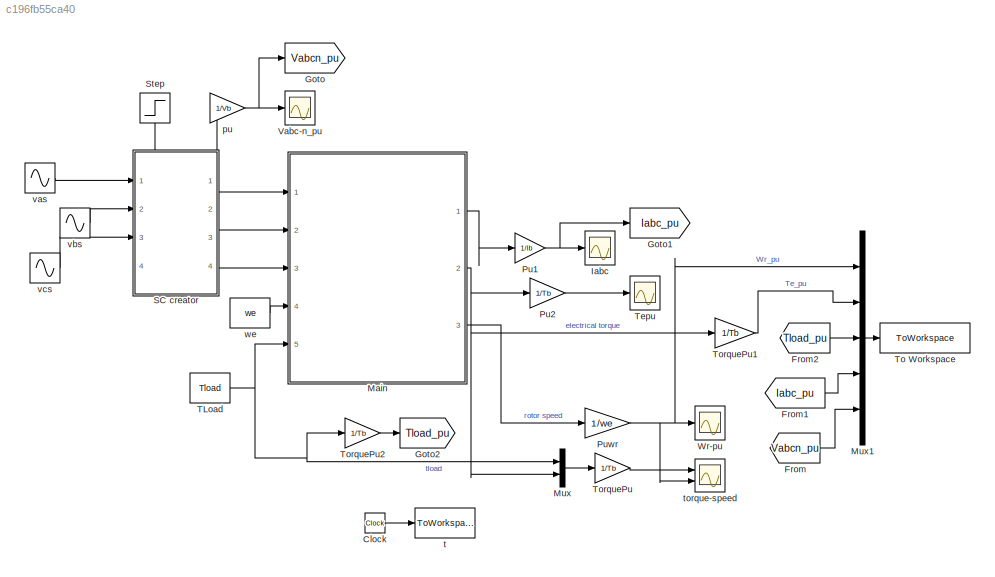
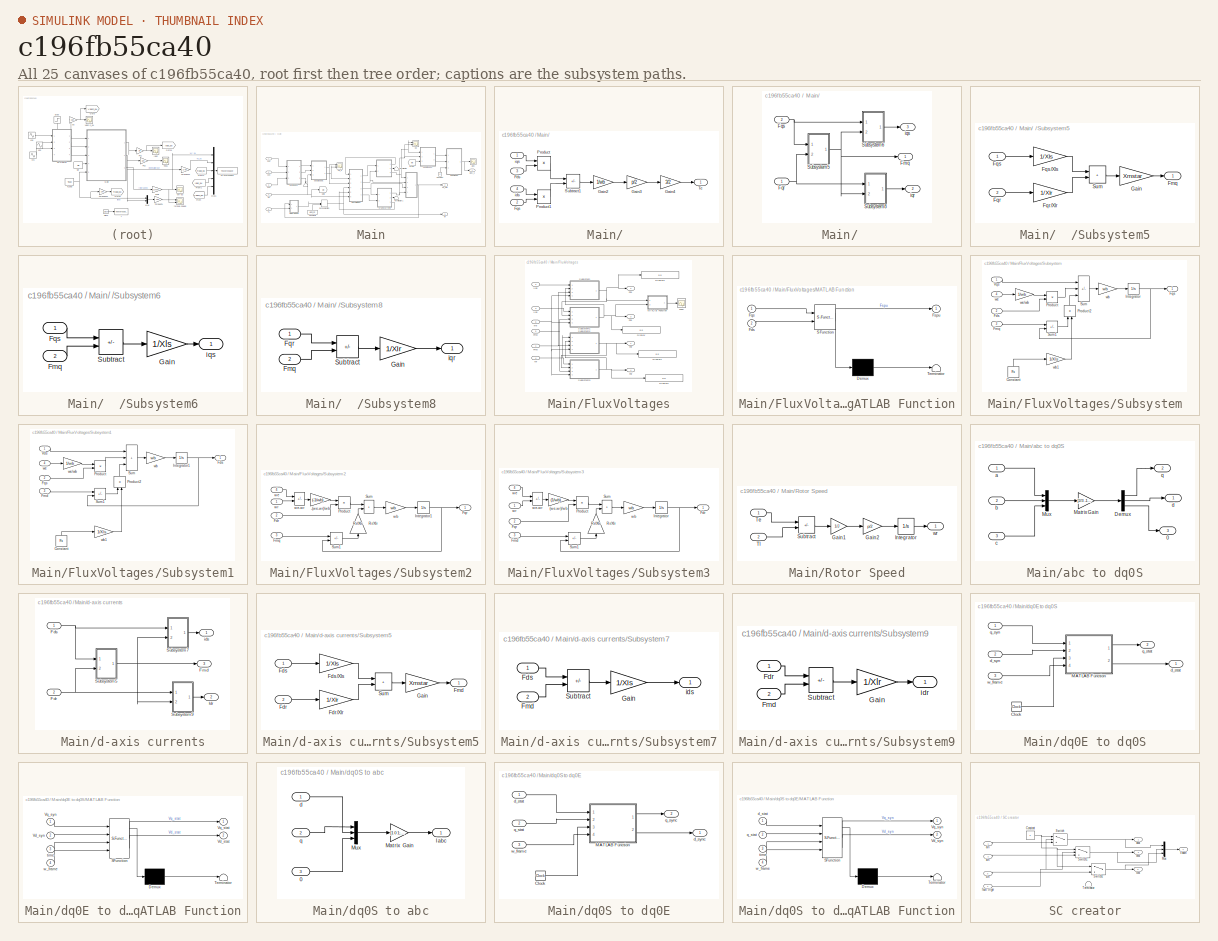
[diagram: thumbnail index - all 25 canvases of the model, root first then tree order]
MODEL slx_c196fb55ca40
KIND model
CONFIG AbsTol = auto
CONFIG EnableMultiTasking = on
CONFIG FixedStep = t_step
CONFIG MaxStep = auto
CONFIG MinStep = auto
CONFIG RelTol = auto
CONFIG SampleTimeConstraint = Unconstrained
CONFIG SolverName = FixedStepAuto
CONFIG StartTime = 0.0
CONFIG StopTime = t_stop*5
BLOCK [Clock] Clock 
  Decimation = 1
BLOCK [From] From
  GotoTag = Vabcn_pu
BLOCK [From] From1
  GotoTag = Iabc_pu
BLOCK [From] From2
  GotoTag = Tload_pu
BLOCK [Goto] Goto
  GotoTag = Vabcn_pu
BLOCK [Goto] Goto1
  GotoTag = Iabc_pu
BLOCK [Goto] Goto2
  GotoTag = Tload_pu
BLOCK [Scope] Iabc
  Floating = off
  NumInputPorts = 1
  Ports = [1]
  ScopeSpecificationString = Simulink.scopes.TimeScopeBlockCfg('CurrentConfiguration', extmgr.ConfigurationSet(extmgr.Configuration('Core','General UI',true,'FigureColor',[0.941176470588235 0.941176470588235 0.941176470588235]),extmgr.Configuration('Core','Source UI',true),extmgr.Configuration('Sources','WiredSimulink',true,'DataLoggingVariableName','ScopeData3'),extmgr.Configuration('Visuals','Time Domain',true,'SerializedDi...<+2250ch>
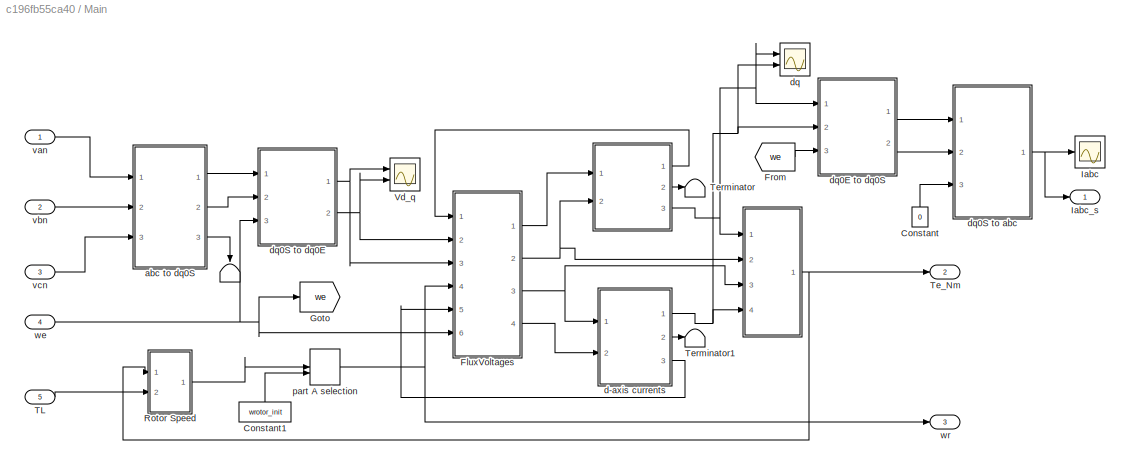
BLOCK [SubSystem] Main
  Ports = [5, 3]
  RequestExecContextInheritance = off
BLOCK [SubSystem] Main/ 
  Ports = [4, 1]
  RequestExecContextInheritance = off
BLOCK [SubSystem] Main/  
  Ports = [2, 3]
  RequestExecContextInheritance = off
BLOCK [Terminator] Main/            
  NameLocation = left
BLOCK [Outport] Main/  /Fmq
  VectorParamsAs1DForOutWhenUnconnected = off
BLOCK [Inport] Main/  /Fqr
BLOCK [Inport] Main/  /Fqs
  Port = 2
BLOCK [SubSystem] Main/  /Subsystem5
  Ports = [2, 1]
  RequestExecContextInheritance = off
BLOCK [Outport] Main/  /Subsystem5/Fmq
  VectorParamsAs1DForOutWhenUnconnected = off
BLOCK [Inport] Main/  /Subsystem5/Fqr
  Port = 2
BLOCK [Gain] Main/  /Subsystem5/Fqr//Xlr
  Gain = 1/Xlr
BLOCK [Inport] Main/  /Subsystem5/Fqs
BLOCK [Gain] Main/  /Subsystem5/Fqs//Xls
  Gain = 1/Xls
BLOCK [Gain] Main/  /Subsystem5/Gain
  Gain = Xmstar
BLOCK [Sum] Main/  /Subsystem5/Sum
  IconShape = rectangular
  Ports = [2, 1]
BLOCK [SubSystem] Main/  /Subsystem6
  Ports = [2, 1]
  RequestExecContextInheritance = off
BLOCK [Inport] Main/  /Subsystem6/Fmq
  Port = 2
BLOCK [Inport] Main/  /Subsystem6/Fqs
BLOCK [Gain] Main/  /Subsystem6/Gain
  Gain = 1/Xls
BLOCK [Sum] Main/  /Subsystem6/Subtract
  IconShape = rectangular
  Inputs = +-
  Ports = [2, 1]
BLOCK [Outport] Main/  /Subsystem6/iqs
  VectorParamsAs1DForOutWhenUnconnected = off
BLOCK [SubSystem] Main/  /Subsystem8
  Ports = [2, 1]
  RequestExecContextInheritance = off
BLOCK [Inport] Main/  /Subsystem8/Fmq
  Port = 2
BLOCK [Inport] Main/  /Subsystem8/Fqr
BLOCK [Gain] Main/  /Subsystem8/Gain
  Gain = 1/Xlr
BLOCK [Sum] Main/  /Subsystem8/Subtract
  IconShape = rectangular
  Inputs = +-
  Ports = [2, 1]
BLOCK [Outport] Main/  /Subsystem8/iqr
  VectorParamsAs1DForOutWhenUnconnected = off
BLOCK [Outport] Main/  /iqr
  Port = 2
  VectorParamsAs1DForOutWhenUnconnected = off
BLOCK [Outport] Main/  /iqs
  Port = 3
  VectorParamsAs1DForOutWhenUnconnected = off
BLOCK [Inport] Main/ /Fds
  Port = 3
BLOCK [Inport] Main/ /Fqs
  Port = 2
BLOCK [Gain] Main/ /Gain2
  Gain = 1/wb
BLOCK [Gain] Main/ /Gain3
  Gain = p/2
BLOCK [Gain] Main/ /Gain4
  Gain = 3/2
BLOCK [Product] Main/ /Product
  Ports = [2, 1]
  RndMeth = Zero
BLOCK [Product] Main/ /Product1
  Ports = [2, 1]
  RndMeth = Zero
BLOCK [Sum] Main/ /Subtract1
  IconShape = rectangular
  Inputs = +-
  Ports = [2, 1]
BLOCK [Outport] Main/ /Te
  VectorParamsAs1DForOutWhenUnconnected = off
BLOCK [Inport] Main/ /ids
  Port = 4
BLOCK [Inport] Main/ /iqs
BLOCK [Constant] Main/Constant
  NameLocation = right
  Value = 0
BLOCK [Constant] Main/Constant1
  NameLocation = right
  Value = wrotor_init
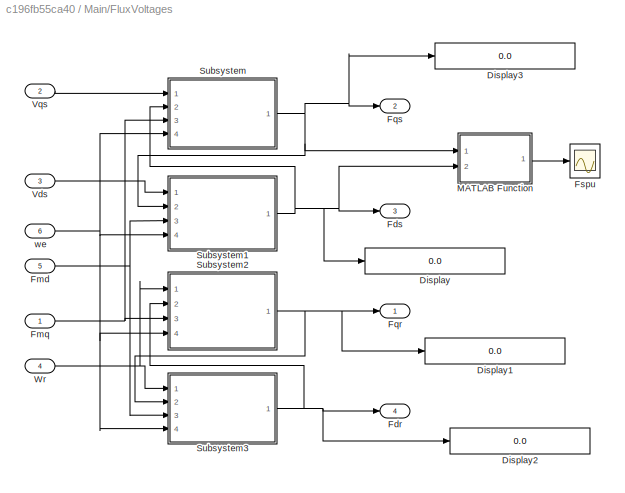
BLOCK [SubSystem] Main/FluxVoltages
  Ports = [6, 4]
  RequestExecContextInheritance = off
BLOCK [Display] Main/FluxVoltages/Display
  Decimation = 6
  Format = long
  Ports = [1]
BLOCK [Display] Main/FluxVoltages/Display1
  Decimation = 6
  Format = long
  Ports = [1]
BLOCK [Display] Main/FluxVoltages/Display2
  Decimation = 6
  Format = long
  Ports = [1]
BLOCK [Display] Main/FluxVoltages/Display3
  Decimation = 6
  Format = long
  Ports = [1]
BLOCK [Outport] Main/FluxVoltages/Fdr
  Port = 4
  VectorParamsAs1DForOutWhenUnconnected = off
BLOCK [Outport] Main/FluxVoltages/Fds
  Port = 3
  VectorParamsAs1DForOutWhenUnconnected = off
BLOCK [Inport] Main/FluxVoltages/Fmd
  Port = 5
BLOCK [Inport] Main/FluxVoltages/Fmq
BLOCK [Outport] Main/FluxVoltages/Fqr
  VectorParamsAs1DForOutWhenUnconnected = off
BLOCK [Outport] Main/FluxVoltages/Fqs
  Port = 2
  VectorParamsAs1DForOutWhenUnconnected = off
BLOCK [Scope] Main/FluxVoltages/Fspu
  Floating = off
  NumInputPorts = 1
  Ports = [1]
  ScopeSpecificationString = Simulink.scopes.TimeScopeBlockCfg('CurrentConfiguration', extmgr.ConfigurationSet(extmgr.Configuration('Core','General UI',true,'FigureColor',[0.941176470588235 0.941176470588235 0.941176470588235]),extmgr.Configuration('Core','Source UI',true),extmgr.Configuration('Sources','WiredSimulink',true,'DataLoggingVariableName','ScopeData4'),extmgr.Configuration('Visuals','Time Domain',true,'SerializedDi...<+2041ch>
BLOCK [SubSystem] Main/FluxVoltages/MATLAB Function
  ErrorFcn = Stateflow.Translate.translate
  PermitHierarchicalResolution = ExplicitOnly
  Ports = [2, 1]
  RequestExecContextInheritance = off
  SFBlockType = MATLAB Function
  TreatAsAtomicUnit = on
BLOCK [Demux] Main/FluxVoltages/MATLAB Function/ Demux 
  Outputs = 1
  Ports = [1, 1]
BLOCK [S-Function] Main/FluxVoltages/MATLAB Function/ SFunction 
  EnableBusSupport = on
  FunctionName = sf_sfun
  PortCounts = [2 2]
  Ports = [2, 2]
  SFcnIsStateOwnerBlock = off
  SFunctionDeploymentMode = off
  Tag = Stateflow S-Function 4
BLOCK [Terminator] Main/FluxVoltages/MATLAB Function/ Terminator 
BLOCK [Inport] Main/FluxVoltages/MATLAB Function/Fds
  Port = 2
BLOCK [Inport] Main/FluxVoltages/MATLAB Function/Fqs
BLOCK [Outport] Main/FluxVoltages/MATLAB Function/Fspu
  VectorParamsAs1DForOutWhenUnconnected = off
BLOCK [SubSystem] Main/FluxVoltages/Subsystem
  Ports = [4, 1]
  RequestExecContextInheritance = off
BLOCK [Constant] Main/FluxVoltages/Subsystem/Constant
  NameLocation = right
  Value = Rs
BLOCK [Inport] Main/FluxVoltages/Subsystem/Fds
  Port = 2
BLOCK [Inport] Main/FluxVoltages/Subsystem/Fmq
  Port = 3
BLOCK [Outport] Main/FluxVoltages/Subsystem/Fqs
  VectorParamsAs1DForOutWhenUnconnected = off
BLOCK [Integrator] Main/FluxVoltages/Subsystem/Integrator
  InitialCondition = fqs0
  Ports = [1, 1]
BLOCK [Product] Main/FluxVoltages/Subsystem/Product
  Ports = [2, 1]
  RndMeth = Zero
BLOCK [Product] Main/FluxVoltages/Subsystem/Product2
  NameLocation = right
  Ports = [2, 1]
  RndMeth = Zero
BLOCK [Sum] Main/FluxVoltages/Subsystem/Sum
  IconShape = rectangular
  Inputs = +-+
  NameLocation = top
  Ports = [3, 1]
BLOCK [Sum] Main/FluxVoltages/Subsystem/Sum1
  IconShape = rectangular
  Inputs = +-
  Ports = [2, 1]
BLOCK [Inport] Main/FluxVoltages/Subsystem/Vqs
BLOCK [Gain] Main/FluxVoltages/Subsystem/wb
  Gain = wb
BLOCK [Gain] Main/FluxVoltages/Subsystem/wb1
  Gain = 1/Xls
BLOCK [Inport] Main/FluxVoltages/Subsystem/we
  Port = 4
BLOCK [Gain] Main/FluxVoltages/Subsystem/we//wb
  Gain = 1/wb
BLOCK [SubSystem] Main/FluxVoltages/Subsystem1
  Ports = [4, 1]
  RequestExecContextInheritance = off
BLOCK [Constant] Main/FluxVoltages/Subsystem1/Constant
  NameLocation = right
  Value = Rs
BLOCK [Outport] Main/FluxVoltages/Subsystem1/Fds
  VectorParamsAs1DForOutWhenUnconnected = off
BLOCK [Inport] Main/FluxVoltages/Subsystem1/Fmd
  Port = 3
BLOCK [Inport] Main/FluxVoltages/Subsystem1/Fqs
  Port = 2
BLOCK [Integrator] Main/FluxVoltages/Subsystem1/Integrator1
  InitialCondition = fds0
  Ports = [1, 1]
BLOCK [Product] Main/FluxVoltages/Subsystem1/Product
  Ports = [2, 1]
  RndMeth = Zero
BLOCK [Product] Main/FluxVoltages/Subsystem1/Product2
  NameLocation = right
  Ports = [2, 1]
  RndMeth = Zero
BLOCK [Sum] Main/FluxVoltages/Subsystem1/Sum
  IconShape = rectangular
  Inputs = +++
  NameLocation = top
  Ports = [3, 1]
BLOCK [Sum] Main/FluxVoltages/Subsystem1/Sum1
  IconShape = rectangular
  Inputs = +-
  Ports = [2, 1]
BLOCK [Inport] Main/FluxVoltages/Subsystem1/Vds
BLOCK [Gain] Main/FluxVoltages/Subsystem1/wb
  Gain = wb
BLOCK [Gain] Main/FluxVoltages/Subsystem1/wb1
  Gain = 1/Xls
BLOCK [Inport] Main/FluxVoltages/Subsystem1/we
  Port = 4
BLOCK [Gain] Main/FluxVoltages/Subsystem1/we//wb
  Gain = 1/wb
BLOCK [SubSystem] Main/FluxVoltages/Subsystem2
  Ports = [4, 1]
  RequestExecContextInheritance = off
BLOCK [Gain] Main/FluxVoltages/Subsystem2/-(we-wr)//wb
  Gain = (-1/wb)
BLOCK [Inport] Main/FluxVoltages/Subsystem2/Fdr
  Port = 2
BLOCK [Inport] Main/FluxVoltages/Subsystem2/Fmq
  Port = 3
BLOCK [Outport] Main/FluxVoltages/Subsystem2/Fqr
  VectorParamsAs1DForOutWhenUnconnected = off
BLOCK [Integrator] Main/FluxVoltages/Subsystem2/Integrator1
  InitialCondition = fqr0
  Ports = [1, 1]
BLOCK [Product] Main/FluxVoltages/Subsystem2/Product
  Ports = [2, 1]
  RndMeth = Zero
BLOCK [Gain] Main/FluxVoltages/Subsystem2/Rr//Xlr
  Gain = Rr/Xlr
  NameLocation = right
BLOCK [Sum] Main/FluxVoltages/Subsystem2/Sum
  IconShape = rectangular
  NameLocation = top
  Ports = [2, 1]
BLOCK [Sum] Main/FluxVoltages/Subsystem2/Sum1
  IconShape = rectangular
  Inputs = +-
  Ports = [2, 1]
BLOCK [Gain] Main/FluxVoltages/Subsystem2/wb
  Gain = wb
BLOCK [Inport] Main/FluxVoltages/Subsystem2/we
  Port = 4
BLOCK [Sum] Main/FluxVoltages/Subsystem2/we-wr
  IconShape = rectangular
  Inputs = +-
  NameLocation = top
  Ports = [2, 1]
BLOCK [Inport] Main/FluxVoltages/Subsystem2/wr
BLOCK [SubSystem] Main/FluxVoltages/Subsystem3
  Ports = [4, 1]
  RequestExecContextInheritance = off
BLOCK [Gain] Main/FluxVoltages/Subsystem3/(we-wr)//wb
  Gain = (1/wb)
BLOCK [Outport] Main/FluxVoltages/Subsystem3/Fdr
  VectorParamsAs1DForOutWhenUnconnected = off
BLOCK [Inport] Main/FluxVoltages/Subsystem3/Fmd
  Port = 3
BLOCK [Inport] Main/FluxVoltages/Subsystem3/Fqr
  Port = 2
BLOCK [Integrator] Main/FluxVoltages/Subsystem3/Integrator
  InitialCondition = fdr0
  Ports = [1, 1]
BLOCK [Product] Main/FluxVoltages/Subsystem3/Product
  Ports = [2, 1]
  RndMeth = Zero
BLOCK [Gain] Main/FluxVoltages/Subsystem3/Rr//Xlr
  Gain = Rr/Xlr
  NameLocation = right
BLOCK [Sum] Main/FluxVoltages/Subsystem3/Sum
  IconShape = rectangular
  NameLocation = top
  Ports = [2, 1]
BLOCK [Sum] Main/FluxVoltages/Subsystem3/Sum1
  IconShape = rectangular
  Inputs = +-
  Ports = [2, 1]
BLOCK [Gain] Main/FluxVoltages/Subsystem3/wb
  Gain = wb
BLOCK [Inport] Main/FluxVoltages/Subsystem3/we
  Port = 4
BLOCK [Sum] Main/FluxVoltages/Subsystem3/we-wr
  IconShape = rectangular
  Inputs = +-
  NameLocation = top
  Ports = [2, 1]
BLOCK [Inport] Main/FluxVoltages/Subsystem3/wr
BLOCK [Inport] Main/FluxVoltages/Vds
  Port = 3
BLOCK [Inport] Main/FluxVoltages/Vqs
  Port = 2
BLOCK [Inport] Main/FluxVoltages/Wr
  Port = 4
BLOCK [Inport] Main/FluxVoltages/we
  Port = 6
BLOCK [From] Main/From
  GotoTag = we
BLOCK [Goto] Main/Goto
  GotoTag = we
BLOCK [Scope] Main/Iabc
  Floating = off
  NumInputPorts = 1
  Ports = [1]
  ScopeSpecificationString = Simulink.scopes.TimeScopeBlockCfg('CurrentConfiguration', extmgr.ConfigurationSet(extmgr.Configuration('Core','General UI',true),extmgr.Configuration('Core','Source UI',true),extmgr.Configuration('Sources','WiredSimulink',true,'DataLoggingVariableName','ScopeData5'),extmgr.Configuration('Visuals','Time Domain',true,'SerializedDisplays',{struct('MinYLimReal','-21195.33407','MaxYLimReal','20741.5835...<+1533ch>
BLOCK [Outport] Main/Iabc_s
  VectorParamsAs1DForOutWhenUnconnected = off
BLOCK [SubSystem] Main/Rotor Speed
  NameLocation = top
  Ports = [2, 1]
  RequestExecContextInheritance = off
BLOCK [Gain] Main/Rotor Speed/Gain1
  Gain = 1/J
BLOCK [Gain] Main/Rotor Speed/Gain2
  Gain = p/2
BLOCK [Integrator] Main/Rotor Speed/Integrator
  InitialCondition = wrotor_init
  Ports = [1, 1]
BLOCK [Sum] Main/Rotor Speed/Subtract
  IconShape = rectangular
  Inputs = +-
  Ports = [2, 1]
BLOCK [Inport] Main/Rotor Speed/Te
BLOCK [Inport] Main/Rotor Speed/Tl
  Port = 2
BLOCK [Outport] Main/Rotor Speed/wr
  VectorParamsAs1DForOutWhenUnconnected = off
BLOCK [Inport] Main/TL
  NameLocation = top
  Port = 5
BLOCK [Outport] Main/Te_Nm
  Port = 2
  VectorParamsAs1DForOutWhenUnconnected = off
BLOCK [Terminator] Main/Terminator
BLOCK [Terminator] Main/Terminator1
BLOCK [Scope] Main/Vd_q
  Floating = off
  NameLocation = top
  NumInputPorts = 2
  Ports = [2]
  ScopeSpecificationString = Simulink.scopes.TimeScopeBlockCfg('CurrentConfiguration', extmgr.ConfigurationSet(extmgr.Configuration('Core','General UI',true),extmgr.Configuration('Core','Source UI',true),extmgr.Configuration('Sources','WiredSimulink',true,'DataLoggingVariableName','ScopeData1','DataLoggingSaveFormat','StructureWithTime','DataLoggingDecimation','1','DataLoggingDecimateData',true),extmgr.Configuration('Visuals'...<+2355ch>
BLOCK [SubSystem] Main/abc to dq0S
  Ports = [3, 3]
  RequestExecContextInheritance = off
BLOCK [Outport] Main/abc to dq0S/0
  Port = 3
  VectorParamsAs1DForOutWhenUnconnected = off
BLOCK [Demux] Main/abc to dq0S/Demux
  Outputs = 3
  Ports = [1, 3]
BLOCK [Gain] Main/abc to dq0S/Matrix Gain
  Gain = [2/3 -1/3 -1/3; 0 -sqrt(3)/3 sqrt(3)/3; 1/3 1/3 1/3]
  Multiplication = Matrix(K*u)
  OutDataTypeStr = Inherit: Same as input
  ParamDataTypeStr = Inherit: Same as input
  SaturateOnIntegerOverflow = on
BLOCK [Mux] Main/abc to dq0S/Mux
  DisplayOption = bar
  Inputs = 3
  Ports = [3, 1]
BLOCK [Inport] Main/abc to dq0S/a
BLOCK [Inport] Main/abc to dq0S/b
  Port = 2
BLOCK [Inport] Main/abc to dq0S/c
  Port = 3
BLOCK [Outport] Main/abc to dq0S/d
  VectorParamsAs1DForOutWhenUnconnected = off
BLOCK [Outport] Main/abc to dq0S/q
  Port = 2
  VectorParamsAs1DForOutWhenUnconnected = off
BLOCK [SubSystem] Main/d-axis currents
  NameLocation = top
  Ports = [2, 3]
  RequestExecContextInheritance = off
BLOCK [Inport] Main/d-axis currents/Fdr
  Port = 2
BLOCK [Inport] Main/d-axis currents/Fds
BLOCK [Outport] Main/d-axis currents/Fmd
  Port = 3
  VectorParamsAs1DForOutWhenUnconnected = off
BLOCK [Outport] Main/d-axis currents/Idr
  Port = 2
  VectorParamsAs1DForOutWhenUnconnected = off
BLOCK [SubSystem] Main/d-axis currents/Subsystem5
  Ports = [2, 1]
  RequestExecContextInheritance = off
BLOCK [Inport] Main/d-axis currents/Subsystem5/Fdr
  Port = 2
BLOCK [Gain] Main/d-axis currents/Subsystem5/Fdr//Xlr
  Gain = 1/Xlr
BLOCK [Inport] Main/d-axis currents/Subsystem5/Fds
BLOCK [Gain] Main/d-axis currents/Subsystem5/Fds//Xls
  Gain = 1/Xls
BLOCK [Outport] Main/d-axis currents/Subsystem5/Fmd
  VectorParamsAs1DForOutWhenUnconnected = off
BLOCK [Gain] Main/d-axis currents/Subsystem5/Gain
  Gain = Xmstar
BLOCK [Sum] Main/d-axis currents/Subsystem5/Sum
  IconShape = rectangular
  Ports = [2, 1]
BLOCK [SubSystem] Main/d-axis currents/Subsystem7
  Ports = [2, 1]
  RequestExecContextInheritance = off
BLOCK [Inport] Main/d-axis currents/Subsystem7/Fds
BLOCK [Inport] Main/d-axis currents/Subsystem7/Fmd
  Port = 2
BLOCK [Gain] Main/d-axis currents/Subsystem7/Gain
  Gain = 1/Xls
BLOCK [Sum] Main/d-axis currents/Subsystem7/Subtract
  IconShape = rectangular
  Inputs = +-
  Ports = [2, 1]
BLOCK [Outport] Main/d-axis currents/Subsystem7/ids
  VectorParamsAs1DForOutWhenUnconnected = off
BLOCK [SubSystem] Main/d-axis currents/Subsystem9
  Ports = [2, 1]
  RequestExecContextInheritance = off
BLOCK [Inport] Main/d-axis currents/Subsystem9/Fdr
BLOCK [Inport] Main/d-axis currents/Subsystem9/Fmd
  Port = 2
BLOCK [Gain] Main/d-axis currents/Subsystem9/Gain
  Gain = 1/Xlr
BLOCK [Sum] Main/d-axis currents/Subsystem9/Subtract
  IconShape = rectangular
  Inputs = +-
  Ports = [2, 1]
BLOCK [Outport] Main/d-axis currents/Subsystem9/idr
  VectorParamsAs1DForOutWhenUnconnected = off
BLOCK [Outport] Main/d-axis currents/ids
  VectorParamsAs1DForOutWhenUnconnected = off
BLOCK [Scope] Main/dq
  Floating = off
  NumInputPorts = 2
  Ports = [2]
  ScopeSpecificationString = Simulink.scopes.TimeScopeBlockCfg('CurrentConfiguration', extmgr.ConfigurationSet(extmgr.Configuration('Core','General UI',true),extmgr.Configuration('Core','Source UI',true),extmgr.Configuration('Sources','WiredSimulink',true,'DataLoggingVariableName','ScopeData2'),extmgr.Configuration('Visuals','Time Domain',true,'SerializedDisplays',{struct('MinYLimReal','-13994.14484','MaxYLimReal','11940.7003...<+2169ch>
BLOCK [SubSystem] Main/dq0E to dq0S
  Ports = [3, 2]
  RequestExecContextInheritance = off
BLOCK [Clock] Main/dq0E to dq0S/Clock
BLOCK [SubSystem] Main/dq0E to dq0S/MATLAB Function
  ErrorFcn = Stateflow.Translate.translate
  PermitHierarchicalResolution = ExplicitOnly
  Ports = [4, 2]
  RequestExecContextInheritance = off
  SFBlockType = MATLAB Function
  TreatAsAtomicUnit = on
BLOCK [Demux] Main/dq0E to dq0S/MATLAB Function/ Demux 
  Outputs = 1
  Ports = [1, 1]
BLOCK [S-Function] Main/dq0E to dq0S/MATLAB Function/ SFunction 
  EnableBusSupport = on
  FunctionName = sf_sfun
  PortCounts = [4 3]
  Ports = [4, 3]
  SFcnIsStateOwnerBlock = off
  SFunctionDeploymentMode = off
  Tag = Stateflow S-Function 3
BLOCK [Terminator] Main/dq0E to dq0S/MATLAB Function/ Terminator 
BLOCK [Outport] Main/dq0E to dq0S/MATLAB Function/Vd_stat
  Port = 2
BLOCK [Inport] Main/dq0E to dq0S/MATLAB Function/Vd_syn
  Port = 2
BLOCK [Outport] Main/dq0E to dq0S/MATLAB Function/Vq_stat
BLOCK [Inport] Main/dq0E to dq0S/MATLAB Function/Vq_syn
BLOCK [Inport] Main/dq0E to dq0S/MATLAB Function/time
  Port = 3
BLOCK [Inport] Main/dq0E to dq0S/MATLAB Function/w_frame
  Port = 4
BLOCK [Outport] Main/dq0E to dq0S/d_stat
  VectorParamsAs1DForOutWhenUnconnected = off
BLOCK [Inport] Main/dq0E to dq0S/d_syn
  Port = 2
BLOCK [Outport] Main/dq0E to dq0S/q_stat
  Port = 2
  VectorParamsAs1DForOutWhenUnconnected = off
BLOCK [Inport] Main/dq0E to dq0S/q_syn
BLOCK [Inport] Main/dq0E to dq0S/w_frame
  Port = 3
BLOCK [SubSystem] Main/dq0S to abc
  Ports = [3, 1]
  RequestExecContextInheritance = off
BLOCK [Inport] Main/dq0S to abc/0
  Port = 3
BLOCK [Outport] Main/dq0S to abc/Iabc
  VectorParamsAs1DForOutWhenUnconnected = off
BLOCK [Gain] Main/dq0S to abc/Matrix Gain
  Gain = [1 0 1; -1/2 -sqrt(3)/2 1; -1/2 sqrt(3)/2 1]
  Multiplication = Matrix(K*u)
  OutDataTypeStr = Inherit: Same as input
  ParamDataTypeStr = Inherit: Same as input
  SaturateOnIntegerOverflow = on
BLOCK [Mux] Main/dq0S to abc/Mux
  DisplayOption = bar
  Inputs = 3
  Ports = [3, 1]
BLOCK [Inport] Main/dq0S to abc/d
BLOCK [Inport] Main/dq0S to abc/q
  Port = 2
BLOCK [SubSystem] Main/dq0S to dq0E
  Ports = [3, 2]
  RequestExecContextInheritance = off
BLOCK [Clock] Main/dq0S to dq0E/Clock
BLOCK [SubSystem] Main/dq0S to dq0E/MATLAB Function
  ErrorFcn = Stateflow.Translate.translate
  PermitHierarchicalResolution = ExplicitOnly
  Ports = [4, 2]
  RequestExecContextInheritance = off
  SFBlockType = MATLAB Function
  TreatAsAtomicUnit = on
BLOCK [Demux] Main/dq0S to dq0E/MATLAB Function/ Demux 
  Outputs = 1
  Ports = [1, 1]
BLOCK [S-Function] Main/dq0S to dq0E/MATLAB Function/ SFunction 
  EnableBusSupport = on
  FunctionName = sf_sfun
  PortCounts = [4 3]
  Ports = [4, 3]
  SFcnIsStateOwnerBlock = off
  SFunctionDeploymentMode = off
  Tag = Stateflow S-Function 1
BLOCK [Terminator] Main/dq0S to dq0E/MATLAB Function/ Terminator 
BLOCK [Outport] Main/dq0S to dq0E/MATLAB Function/Vd_syn
  Port = 2
BLOCK [Outport] Main/dq0S to dq0E/MATLAB Function/Vq_syn
BLOCK [Inport] Main/dq0S to dq0E/MATLAB Function/d_stat
BLOCK [Inport] Main/dq0S to dq0E/MATLAB Function/q_stat
  Port = 2
BLOCK [Inport] Main/dq0S to dq0E/MATLAB Function/time
  Port = 3
BLOCK [Inport] Main/dq0S to dq0E/MATLAB Function/w_frame
  Port = 4
BLOCK [Inport] Main/dq0S to dq0E/d_stat
BLOCK [Outport] Main/dq0S to dq0E/d_sync
  VectorParamsAs1DForOutWhenUnconnected = off
BLOCK [Inport] Main/dq0S to dq0E/q_stat
  Port = 2
BLOCK [Outport] Main/dq0S to dq0E/q_sync
  Port = 2
  VectorParamsAs1DForOutWhenUnconnected = off
BLOCK [Inport] Main/dq0S to dq0E/w_frame
  Port = 3
BLOCK [ManualSwitch] Main/part A selection
BLOCK [Inport] Main/van
BLOCK [Inport] Main/vbn
  Port = 2
BLOCK [Inport] Main/vcn
  Port = 3
BLOCK [Inport] Main/we
  Port = 4
BLOCK [Outport] Main/wr
  Port = 3
  VectorParamsAs1DForOutWhenUnconnected = off
BLOCK [Mux] Mux
  DisplayOption = bar
  Inputs = 2
  Ports = [2, 1]
BLOCK [Mux] Mux1
  DisplayOption = bar
  Inputs = 5
  Ports = [5, 1]
BLOCK [Gain] Pu1
  Gain = 1/Ib
BLOCK [Gain] Pu2
  Gain = 1/Tb
BLOCK [Gain] Puwr
  Gain = 1/we
BLOCK [SubSystem] SC creator
  PortSchema = {"entries":[{"content":{"sides":[{"content":{"connectorIds":["In1","In2","In3"]},"type":"ConnectorPlacement.EquallySpacedRectSide","uuid":"9ddc0e81-d44d-497f-b86e-b421830f0102"},{"content":{"connectorIds":["Out1","Out2","Out3"],"side":"RIGHT"},"type":"ConnectorPlacement.EquallySpacedRectSide","uuid":"d203c1c5-ccdb-4337-8271-1be315a7d96e"},{"content":{"connectorIds":["In4","Out4"],"side":"TOP"},"ty...<+278ch>
  Ports = [4, 4]
  RequestExecContextInheritance = off
BLOCK [Constant] SC creator/Constant
  Value = 0
BLOCK [Mux] SC creator/Mux
  DisplayOption = bar
  Inputs = 3
  Ports = [3, 1]
BLOCK [Switch] SC creator/Switch
  Criteria = u2 > Threshold
  InputSameDT = off
  SaturateOnIntegerOverflow = off
BLOCK [Switch] SC creator/Switch1
  Criteria = u2 > Threshold
  InputSameDT = off
  SaturateOnIntegerOverflow = off
BLOCK [Switch] SC creator/Switch2
  Criteria = u2 > Threshold
  InputSameDT = off
  SaturateOnIntegerOverflow = off
BLOCK [Terminator] SC creator/Terminator
BLOCK [Outport] SC creator/Vabcn
  Port = 4
BLOCK [Inport] SC creator/ain
BLOCK [Outport] SC creator/aout
BLOCK [Inport] SC creator/bin
  Port = 2
BLOCK [Outport] SC creator/bout
  Port = 2
BLOCK [Inport] SC creator/cin
  Port = 3
BLOCK [Outport] SC creator/cout
  Port = 3
BLOCK [Inport] SC creator/fault triger
  Port = 4
BLOCK [Step] Step
  Before = -1
  NameLocation = left
  SampleTime = 0
  Time = t_fault(k)*0+2.5+1/50*90/360
BLOCK [Constant] TLoad
  Value = Tload
BLOCK [Scope] Tepu
  Floating = off
  NumInputPorts = 1
  Ports = [1]
  ScopeSpecificationString = Simulink.scopes.TimeScopeBlockCfg('CurrentConfiguration', extmgr.ConfigurationSet(extmgr.Configuration('Core','General UI',true,'FigureColor',[0.941176470588235 0.941176470588235 0.941176470588235]),extmgr.Configuration('Core','Source UI',true),extmgr.Configuration('Sources','WiredSimulink',true,'DataLoggingVariableName','ScopeData5'),extmgr.Configuration('Visuals','Time Domain',true,'SerializedDi...<+2042ch>
BLOCK [ToWorkspace] To Workspace
  FixptAsFi = on
  MaxDataPoints = inf
  Ports = [1]
  SampleTime = -1
  VariableName = outputVars
BLOCK [Gain] TorquePu
  Gain = 1/Tb
BLOCK [Gain] TorquePu1
  Gain = 1/Tb
BLOCK [Gain] TorquePu2
  Gain = 1/Tb
  NameLocation = top
BLOCK [Scope] Vabc-n_pu
  Floating = off
  NumInputPorts = 1
  Ports = [1]
  ScopeSpecificationString = Simulink.scopes.TimeScopeBlockCfg('CurrentConfiguration', extmgr.ConfigurationSet(extmgr.Configuration('Core','General UI',true,'FigureColor',[0.941176470588235 0.941176470588235 0.941176470588235]),extmgr.Configuration('Core','Source UI',true),extmgr.Configuration('Sources','WiredSimulink',true,'DataLoggingVariableName','ScopeData1'),extmgr.Configuration('Visuals','Time Domain',true,'SerializedDi...<+2130ch>
BLOCK [Scope] Wr-pu
  Floating = off
  NumInputPorts = 1
  Ports = [1]
  ScopeSpecificationString = Simulink.scopes.TimeScopeBlockCfg('CurrentConfiguration', extmgr.ConfigurationSet(extmgr.Configuration('Core','General UI',true,'FigureColor',[0.941176470588235 0.941176470588235 0.941176470588235]),extmgr.Configuration('Core','Source UI',true),extmgr.Configuration('Sources','WiredSimulink',true,'DataLoggingVariableName','ScopeData6'),extmgr.Configuration('Visuals','Time Domain',true,'SerializedDi...<+2034ch>
BLOCK [Gain] pu
  Gain = 1/Vb
BLOCK [ToWorkspace] t
  FixptAsFi = on
  MaxDataPoints = inf
  Ports = [1]
  SampleTime = -1
  VariableName = t
BLOCK [Scope] torque-speed
  Floating = off
  NumInputPorts = 2
  Ports = [2]
  ScopeSpecificationString = Simulink.scopes.TimeScopeBlockCfg('CurrentConfiguration', extmgr.ConfigurationSet(extmgr.Configuration('Core','General UI',true,'FigureColor',[0.941176470588235 0.941176470588235 0.941176470588235]),extmgr.Configuration('Core','Source UI',true),extmgr.Configuration('Sources','WiredSimulink',true,'DataLoggingVariableName','ScopeData2'),extmgr.Configuration('Visuals','Time Domain',true,'SerializedDi...<+2854ch>
BLOCK [Sin] vas
  Amplitude = Vb
  Frequency = wb
  Phase = pi/2
  Ports = [0, 1]
  SampleTime = 0
BLOCK [Sin] vbs
  Amplitude = Vb
  Frequency = wb
  Phase = -120*pi/180+pi/2
  Ports = [0, 1]
  SampleTime = 0
BLOCK [Sin] vcs
  Amplitude = Vb
  Frequency = wb
  Phase = -240*pi/180+pi/2
  Ports = [0, 1]
  SampleTime = 0
BLOCK [Constant] we
  Value = we
LINE Clock :1 -> t:1
LINE From1:1 -> Mux1:4
LINE From2:1 -> Mux1:3
LINE From:1 -> Mux1:5
NET Main/  /Fqr:1 -> Main/  /Subsystem5:2, Main/  /Subsystem8:1
NET Main/  /Fqs:1 -> Main/  /Subsystem5:1, Main/  /Subsystem6:1
LINE Main/  /Subsystem5/Fqr//Xlr:1 -> Main/  /Subsystem5/Sum:2
LINE Main/  /Subsystem5/Fqr:1 -> Main/  /Subsystem5/Fqr//Xlr:1
LINE Main/  /Subsystem5/Fqs//Xls:1 -> Main/  /Subsystem5/Sum:1
LINE Main/  /Subsystem5/Fqs:1 -> Main/  /Subsystem5/Fqs//Xls:1
LINE Main/  /Subsystem5/Gain:1 -> Main/  /Subsystem5/Fmq:1
LINE Main/  /Subsystem5/Sum:1 -> Main/  /Subsystem5/Gain:1
NET Main/  /Subsystem5:1 -> Main/  /Fmq:1, Main/  /Subsystem6:2, Main/  /Subsystem8:2
LINE Main/  /Subsystem6/Fmq:1 -> Main/  /Subsystem6/Subtract:2
LINE Main/  /Subsystem6/Fqs:1 -> Main/  /Subsystem6/Subtract:1
LINE Main/  /Subsystem6/Gain:1 -> Main/  /Subsystem6/iqs:1
LINE Main/  /Subsystem6/Subtract:1 -> Main/  /Subsystem6/Gain:1
LINE Main/  /Subsystem6:1 -> Main/  /iqs:1
LINE Main/  /Subsystem8/Fmq:1 -> Main/  /Subsystem8/Subtract:2
LINE Main/  /Subsystem8/Fqr:1 -> Main/  /Subsystem8/Subtract:1
LINE Main/  /Subsystem8/Gain:1 -> Main/  /Subsystem8/iqr:1
LINE Main/  /Subsystem8/Subtract:1 -> Main/  /Subsystem8/Gain:1
LINE Main/  /Subsystem8:1 -> Main/  /iqr:1
LINE Main/  :1 -> Main/FluxVoltages:1
LINE Main/  :2 -> Main/Terminator:1
NET Main/  :3 -> Main/ :1, Main/dq0E to dq0S:1, Main/dq:1
LINE Main/ /Fds:1 -> Main/ /Product:2
LINE Main/ /Fqs:1 -> Main/ /Product1:2
LINE Main/ /Gain2:1 -> Main/ /Gain3:1
LINE Main/ /Gain3:1 -> Main/ /Gain4:1
LINE Main/ /Gain4:1 -> Main/ /Te:1
LINE Main/ /Product1:1 -> Main/ /Subtract1:2
LINE Main/ /Product:1 -> Main/ /Subtract1:1
LINE Main/ /Subtract1:1 -> Main/ /Gain2:1
LINE Main/ /ids:1 -> Main/ /Product1:1
LINE Main/ /iqs:1 -> Main/ /Product:1
NET Main/ :1 -> Main/Rotor Speed:1, Main/Te_Nm:1
LINE Main/Constant1:1 -> Main/part A selection:2
LINE Main/Constant:1 -> Main/dq0S to abc:3
NET Main/FluxVoltages/Fmd:1 -> Main/FluxVoltages/Subsystem1:3, Main/FluxVoltages/Subsystem3:3
NET Main/FluxVoltages/Fmq:1 -> Main/FluxVoltages/Subsystem2:3, Main/FluxVoltages/Subsystem:3
LINE Main/FluxVoltages/MATLAB Function:1 -> Main/FluxVoltages/Fspu:1
LINE Main/FluxVoltages/Subsystem/Constant:1 -> Main/FluxVoltages/Subsystem/wb1:1
LINE Main/FluxVoltages/Subsystem/Fds:1 -> Main/FluxVoltages/Subsystem/Product:2
LINE Main/FluxVoltages/Subsystem/Fmq:1 -> Main/FluxVoltages/Subsystem/Sum1:1
NET Main/FluxVoltages/Subsystem/Integrator:1 -> Main/FluxVoltages/Subsystem/Fqs:1, Main/FluxVoltages/Subsystem/Sum1:2
LINE Main/FluxVoltages/Subsystem/Product2:1 -> Main/FluxVoltages/Subsystem/Sum:3
LINE Main/FluxVoltages/Subsystem/Product:1 -> Main/FluxVoltages/Subsystem/Sum:2
LINE Main/FluxVoltages/Subsystem/Sum1:1 -> Main/FluxVoltages/Subsystem/Product2:1
LINE Main/FluxVoltages/Subsystem/Sum:1 -> Main/FluxVoltages/Subsystem/wb:1
LINE Main/FluxVoltages/Subsystem/Vqs:1 -> Main/FluxVoltages/Subsystem/Sum:1
LINE Main/FluxVoltages/Subsystem/wb1:1 -> Main/FluxVoltages/Subsystem/Product2:2
LINE Main/FluxVoltages/Subsystem/wb:1 -> Main/FluxVoltages/Subsystem/Integrator:1
LINE Main/FluxVoltages/Subsystem/we//wb:1 -> Main/FluxVoltages/Subsystem/Product:1
LINE Main/FluxVoltages/Subsystem/we:1 -> Main/FluxVoltages/Subsystem/we//wb:1
LINE Main/FluxVoltages/Subsystem1/Constant:1 -> Main/FluxVoltages/Subsystem1/wb1:1
LINE Main/FluxVoltages/Subsystem1/Fmd:1 -> Main/FluxVoltages/Subsystem1/Sum1:1
LINE Main/FluxVoltages/Subsystem1/Fqs:1 -> Main/FluxVoltages/Subsystem1/Product:2
NET Main/FluxVoltages/Subsystem1/Integrator1:1 -> Main/FluxVoltages/Subsystem1/Fds:1, Main/FluxVoltages/Subsystem1/Sum1:2
LINE Main/FluxVoltages/Subsystem1/Product2:1 -> Main/FluxVoltages/Subsystem1/Sum:3
LINE Main/FluxVoltages/Subsystem1/Product:1 -> Main/FluxVoltages/Subsystem1/Sum:2
LINE Main/FluxVoltages/Subsystem1/Sum1:1 -> Main/FluxVoltages/Subsystem1/Product2:1
LINE Main/FluxVoltages/Subsystem1/Sum:1 -> Main/FluxVoltages/Subsystem1/wb:1
LINE Main/FluxVoltages/Subsystem1/Vds:1 -> Main/FluxVoltages/Subsystem1/Sum:1
LINE Main/FluxVoltages/Subsystem1/wb1:1 -> Main/FluxVoltages/Subsystem1/Product2:2
LINE Main/FluxVoltages/Subsystem1/wb:1 -> Main/FluxVoltages/Subsystem1/Integrator1:1
LINE Main/FluxVoltages/Subsystem1/we//wb:1 -> Main/FluxVoltages/Subsystem1/Product:1
LINE Main/FluxVoltages/Subsystem1/we:1 -> Main/FluxVoltages/Subsystem1/we//wb:1
NET Main/FluxVoltages/Subsystem1:1 -> Main/FluxVoltages/Display:1, Main/FluxVoltages/Fds:1, Main/FluxVoltages/MATLAB Function:2, Main/FluxVoltages/Subsystem:2
LINE Main/FluxVoltages/Subsystem2/-(we-wr)//wb:1 -> Main/FluxVoltages/Subsystem2/Product:1
LINE Main/FluxVoltages/Subsystem2/Fdr:1 -> Main/FluxVoltages/Subsystem2/Product:2
LINE Main/FluxVoltages/Subsystem2/Fmq:1 -> Main/FluxVoltages/Subsystem2/Sum1:1
NET Main/FluxVoltages/Subsystem2/Integrator1:1 -> Main/FluxVoltages/Subsystem2/Fqr:1, Main/FluxVoltages/Subsystem2/Sum1:2
LINE Main/FluxVoltages/Subsystem2/Product:1 -> Main/FluxVoltages/Subsystem2/Sum:1
LINE Main/FluxVoltages/Subsystem2/Rr//Xlr:1 -> Main/FluxVoltages/Subsystem2/Sum:2
LINE Main/FluxVoltages/Subsystem2/Sum1:1 -> Main/FluxVoltages/Subsystem2/Rr//Xlr:1
LINE Main/FluxVoltages/Subsystem2/Sum:1 -> Main/FluxVoltages/Subsystem2/wb:1
LINE Main/FluxVoltages/Subsystem2/wb:1 -> Main/FluxVoltages/Subsystem2/Integrator1:1
LINE Main/FluxVoltages/Subsystem2/we-wr:1 -> Main/FluxVoltages/Subsystem2/-(we-wr)//wb:1
LINE Main/FluxVoltages/Subsystem2/we:1 -> Main/FluxVoltages/Subsystem2/we-wr:1
LINE Main/FluxVoltages/Subsystem2/wr:1 -> Main/FluxVoltages/Subsystem2/we-wr:2
NET Main/FluxVoltages/Subsystem2:1 -> Main/FluxVoltages/Display1:1, Main/FluxVoltages/Fqr:1, Main/FluxVoltages/Subsystem3:2
LINE Main/FluxVoltages/Subsystem3/(we-wr)//wb:1 -> Main/FluxVoltages/Subsystem3/Product:1
LINE Main/FluxVoltages/Subsystem3/Fmd:1 -> Main/FluxVoltages/Subsystem3/Sum1:1
LINE Main/FluxVoltages/Subsystem3/Fqr:1 -> Main/FluxVoltages/Subsystem3/Product:2
NET Main/FluxVoltages/Subsystem3/Integrator:1 -> Main/FluxVoltages/Subsystem3/Fdr:1, Main/FluxVoltages/Subsystem3/Sum1:2
LINE Main/FluxVoltages/Subsystem3/Product:1 -> Main/FluxVoltages/Subsystem3/Sum:1
LINE Main/FluxVoltages/Subsystem3/Rr//Xlr:1 -> Main/FluxVoltages/Subsystem3/Sum:2
LINE Main/FluxVoltages/Subsystem3/Sum1:1 -> Main/FluxVoltages/Subsystem3/Rr//Xlr:1
LINE Main/FluxVoltages/Subsystem3/Sum:1 -> Main/FluxVoltages/Subsystem3/wb:1
LINE Main/FluxVoltages/Subsystem3/wb:1 -> Main/FluxVoltages/Subsystem3/Integrator:1
LINE Main/FluxVoltages/Subsystem3/we-wr:1 -> Main/FluxVoltages/Subsystem3/(we-wr)//wb:1
LINE Main/FluxVoltages/Subsystem3/we:1 -> Main/FluxVoltages/Subsystem3/we-wr:1
LINE Main/FluxVoltages/Subsystem3/wr:1 -> Main/FluxVoltages/Subsystem3/we-wr:2
NET Main/FluxVoltages/Subsystem3:1 -> Main/FluxVoltages/Display2:1, Main/FluxVoltages/Fdr:1, Main/FluxVoltages/Subsystem2:2
NET Main/FluxVoltages/Subsystem:1 -> Main/FluxVoltages/Display3:1, Main/FluxVoltages/Fqs:1, Main/FluxVoltages/MATLAB Function:1, Main/FluxVoltages/Subsystem1:2
LINE Main/FluxVoltages/Vds:1 -> Main/FluxVoltages/Subsystem1:1
LINE Main/FluxVoltages/Vqs:1 -> Main/FluxVoltages/Subsystem:1
NET Main/FluxVoltages/Wr:1 -> Main/FluxVoltages/Subsystem2:1, Main/FluxVoltages/Subsystem3:1
NET Main/FluxVoltages/we:1 -> Main/FluxVoltages/Subsystem1:4, Main/FluxVoltages/Subsystem2:4, Main/FluxVoltages/Subsystem3:4, Main/FluxVoltages/Subsystem:4
LINE Main/FluxVoltages:1 -> Main/  :1
NET Main/FluxVoltages:2 -> Main/  :2, Main/ :2
NET Main/FluxVoltages:3 -> Main/ :3, Main/d-axis currents:1
LINE Main/FluxVoltages:4 -> Main/d-axis currents:2
LINE Main/From:1 -> Main/dq0E to dq0S:3
LINE Main/Rotor Speed/Gain1:1 -> Main/Rotor Speed/Gain2:1
LINE Main/Rotor Speed/Gain2:1 -> Main/Rotor Speed/Integrator:1
LINE Main/Rotor Speed/Integrator:1 -> Main/Rotor Speed/wr:1
LINE Main/Rotor Speed/Subtract:1 -> Main/Rotor Speed/Gain1:1
LINE Main/Rotor Speed/Te:1 -> Main/Rotor Speed/Subtract:1
LINE Main/Rotor Speed/Tl:1 -> Main/Rotor Speed/Subtract:2
LINE Main/Rotor Speed:1 -> Main/part A selection:1
LINE Main/TL:1 -> Main/Rotor Speed:2
LINE Main/abc to dq0S/Demux:1 -> Main/abc to dq0S/q:1
LINE Main/abc to dq0S/Demux:2 -> Main/abc to dq0S/d:1
LINE Main/abc to dq0S/Demux:3 -> Main/abc to dq0S/0:1
LINE Main/abc to dq0S/Matrix Gain:1 -> Main/abc to dq0S/Demux:1
LINE Main/abc to dq0S/Mux:1 -> Main/abc to dq0S/Matrix Gain:1
LINE Main/abc to dq0S/a:1 -> Main/abc to dq0S/Mux:1
LINE Main/abc to dq0S/b:1 -> Main/abc to dq0S/Mux:2
LINE Main/abc to dq0S/c:1 -> Main/abc to dq0S/Mux:3
LINE Main/abc to dq0S:1 -> Main/dq0S to dq0E:1
LINE Main/abc to dq0S:2 -> Main/dq0S to dq0E:2
LINE Main/abc to dq0S:3 -> Main/            :1
NET Main/d-axis currents/Fdr:1 -> Main/d-axis currents/Subsystem5:2, Main/d-axis currents/Subsystem9:1
NET Main/d-axis currents/Fds:1 -> Main/d-axis currents/Subsystem5:1, Main/d-axis currents/Subsystem7:1
LINE Main/d-axis currents/Subsystem5/Fdr//Xlr:1 -> Main/d-axis currents/Subsystem5/Sum:2
LINE Main/d-axis currents/Subsystem5/Fdr:1 -> Main/d-axis currents/Subsystem5/Fdr//Xlr:1
LINE Main/d-axis currents/Subsystem5/Fds//Xls:1 -> Main/d-axis currents/Subsystem5/Sum:1
LINE Main/d-axis currents/Subsystem5/Fds:1 -> Main/d-axis currents/Subsystem5/Fds//Xls:1
LINE Main/d-axis currents/Subsystem5/Gain:1 -> Main/d-axis currents/Subsystem5/Fmd:1
LINE Main/d-axis currents/Subsystem5/Sum:1 -> Main/d-axis currents/Subsystem5/Gain:1
NET Main/d-axis currents/Subsystem5:1 -> Main/d-axis currents/Fmd:1, Main/d-axis currents/Subsystem7:2, Main/d-axis currents/Subsystem9:2
LINE Main/d-axis currents/Subsystem7/Fds:1 -> Main/d-axis currents/Subsystem7/Subtract:1
LINE Main/d-axis currents/Subsystem7/Fmd:1 -> Main/d-axis currents/Subsystem7/Subtract:2
LINE Main/d-axis currents/Subsystem7/Gain:1 -> Main/d-axis currents/Subsystem7/ids:1
LINE Main/d-axis currents/Subsystem7/Subtract:1 -> Main/d-axis currents/Subsystem7/Gain:1
LINE Main/d-axis currents/Subsystem7:1 -> Main/d-axis currents/ids:1
LINE Main/d-axis currents/Subsystem9/Fdr:1 -> Main/d-axis currents/Subsystem9/Subtract:1
LINE Main/d-axis currents/Subsystem9/Fmd:1 -> Main/d-axis currents/Subsystem9/Subtract:2
LINE Main/d-axis currents/Subsystem9/Gain:1 -> Main/d-axis currents/Subsystem9/idr:1
LINE Main/d-axis currents/Subsystem9/Subtract:1 -> Main/d-axis currents/Subsystem9/Gain:1
LINE Main/d-axis currents/Subsystem9:1 -> Main/d-axis currents/Idr:1
NET Main/d-axis currents:1 -> Main/ :4, Main/dq0E to dq0S:2, Main/dq:2
LINE Main/d-axis currents:2 -> Main/Terminator1:1
LINE Main/d-axis currents:3 -> Main/FluxVoltages:5
LINE Main/dq0E to dq0S/Clock:1 -> Main/dq0E to dq0S/MATLAB Function:3
LINE Main/dq0E to dq0S/MATLAB Function:1 -> Main/dq0E to dq0S/q_stat:1
LINE Main/dq0E to dq0S/MATLAB Function:2 -> Main/dq0E to dq0S/d_stat:1
LINE Main/dq0E to dq0S/d_syn:1 -> Main/dq0E to dq0S/MATLAB Function:2
LINE Main/dq0E to dq0S/q_syn:1 -> Main/dq0E to dq0S/MATLAB Function:1
LINE Main/dq0E to dq0S/w_frame:1 -> Main/dq0E to dq0S/MATLAB Function:4
LINE Main/dq0E to dq0S:1 -> Main/dq0S to abc:1
LINE Main/dq0E to dq0S:2 -> Main/dq0S to abc:2
LINE Main/dq0S to abc/0:1 -> Main/dq0S to abc/Mux:3
LINE Main/dq0S to abc/Matrix Gain:1 -> Main/dq0S to abc/Iabc:1
LINE Main/dq0S to abc/Mux:1 -> Main/dq0S to abc/Matrix Gain:1
LINE Main/dq0S to abc/d:1 -> Main/dq0S to abc/Mux:2
LINE Main/dq0S to abc/q:1 -> Main/dq0S to abc/Mux:1
NET Main/dq0S to abc:1 -> Main/Iabc:1, Main/Iabc_s:1
LINE Main/dq0S to dq0E/Clock:1 -> Main/dq0S to dq0E/MATLAB Function:3
LINE Main/dq0S to dq0E/MATLAB Function:1 -> Main/dq0S to dq0E/q_sync:1
LINE Main/dq0S to dq0E/MATLAB Function:2 -> Main/dq0S to dq0E/d_sync:1
LINE Main/dq0S to dq0E/d_stat:1 -> Main/dq0S to dq0E/MATLAB Function:1
LINE Main/dq0S to dq0E/q_stat:1 -> Main/dq0S to dq0E/MATLAB Function:2
LINE Main/dq0S to dq0E/w_frame:1 -> Main/dq0S to dq0E/MATLAB Function:4
NET Main/dq0S to dq0E:1 -> Main/FluxVoltages:3, Main/Vd_q:1
NET Main/dq0S to dq0E:2 -> Main/FluxVoltages:2, Main/Vd_q:2
NET Main/part A selection:1 -> Main/FluxVoltages:4, Main/wr:1
LINE Main/van:1 -> Main/abc to dq0S:1
LINE Main/vbn:1 -> Main/abc to dq0S:2
LINE Main/vcn:1 -> Main/abc to dq0S:3
NET Main/we:1 -> Main/FluxVoltages:6, Main/Goto:1, Main/dq0S to dq0E:3
LINE Main:1 -> Pu1:1
NET Main:2 -> Mux:2, Pu2:1, TorquePu1:1
LINE Main:3 -> Puwr:1
LINE Mux1:1 -> To Workspace:1
LINE Mux:1 -> TorquePu:1
NET Pu1:1 -> Goto1:1, Iabc:1
LINE Pu2:1 -> Tepu:1
NET Puwr:1 -> Mux1:1, Wr-pu:1, torque-speed:2
NET SC creator/Constant:1 -> SC creator/Switch1:1, SC creator/Switch2:1, SC creator/Switch:1
LINE SC creator/Mux:1 -> SC creator/Vabcn:1
NET SC creator/Switch1:1 -> SC creator/Mux:2, SC creator/bout:1
NET SC creator/Switch2:1 -> SC creator/Mux:3, SC creator/cout:1
NET SC creator/Switch:1 -> SC creator/Mux:1, SC creator/aout:1
LINE SC creator/ain:1 -> SC creator/Switch:3
LINE SC creator/bin:1 -> SC creator/Switch1:3
LINE SC creator/cin:1 -> SC creator/Switch2:3
NET SC creator/fault triger:1 -> SC creator/Switch1:2, SC creator/Switch:2
LINE SC creator:1 -> Main:1
LINE SC creator:2 -> Main:2
LINE SC creator:3 -> Main:3
LINE SC creator:4 -> pu:1
LINE Step:1 -> SC creator:4
NET TLoad:1 -> Main:5, Mux:1, TorquePu2:1
LINE TorquePu1:1 -> Mux1:2
LINE TorquePu2:1 -> Goto2:1
LINE TorquePu:1 -> torque-speed:1
NET pu:1 -> Goto:1, Vabc-n_pu:1
LINE vas:1 -> SC creator:1
LINE vbs:1 -> SC creator:2
LINE vcs:1 -> SC creator:3
LINE we:1 -> Main:4
note: NET lines group one-source signal fan-out (src -> all destinations, sorted); 1:1 wires keep LINE
CHART Main/dq0S to dq0E/MATLAB Function states=1 transitions=1
  STATE_LABEL 'eML_blk_kernel()'
  STATE_LABEL 'SCRIPT:\nfunction [Vq_syn,Vd_syn] = fcn(d_stat,q_stat,time,w_frame)\n\n\nVdq_s_comp = q_stat - 1i*d_stat;\nVdq_e_comp = Vdq_s_comp * exp(-1i*w_frame*time);\nVq_syn = real(Vdq_e_comp);\nVd_syn = -imag(Vdq_e_comp);\n'
CHART Main/dq0E to dq0S/MATLAB Function states=1 transitions=1
  STATE_LABEL 'eML_blk_kernel()'
  STATE_LABEL 'SCRIPT:\nfunction [Vq_stat,Vd_stat] = fcn(Vq_syn,Vd_syn,time,w_frame)\n\n\nVdq_e_comp = Vq_syn - 1i*Vd_syn;\nVdq_s_comp = Vdq_e_comp * exp(1i*w_frame*time);\nVq_stat = real(Vdq_s_comp);\nVd_stat = -imag(Vdq_s_comp);\n'
CHART Main/FluxVoltages/MATLAB Function states=1 transitions=1
  STATE_LABEL 'eML_blk_kernel()'
  STATE_LABEL 'SCRIPT:\nfunction Fspu = fcn(Fqs,Fds)\n\nVb = 376;\nFspu = sqrt(Fqs^2+Fds^2)/Vb;'
CHART  states=0 transitions=0
CHART  states=0 transitions=0
CHART  states=0 transitions=0
